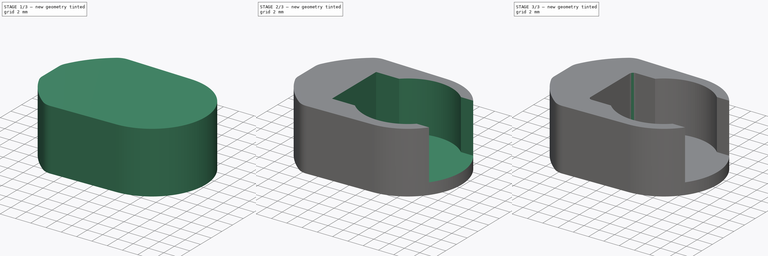
[diagram: build sequence overview — one tinted view per stage of 3, left to right]
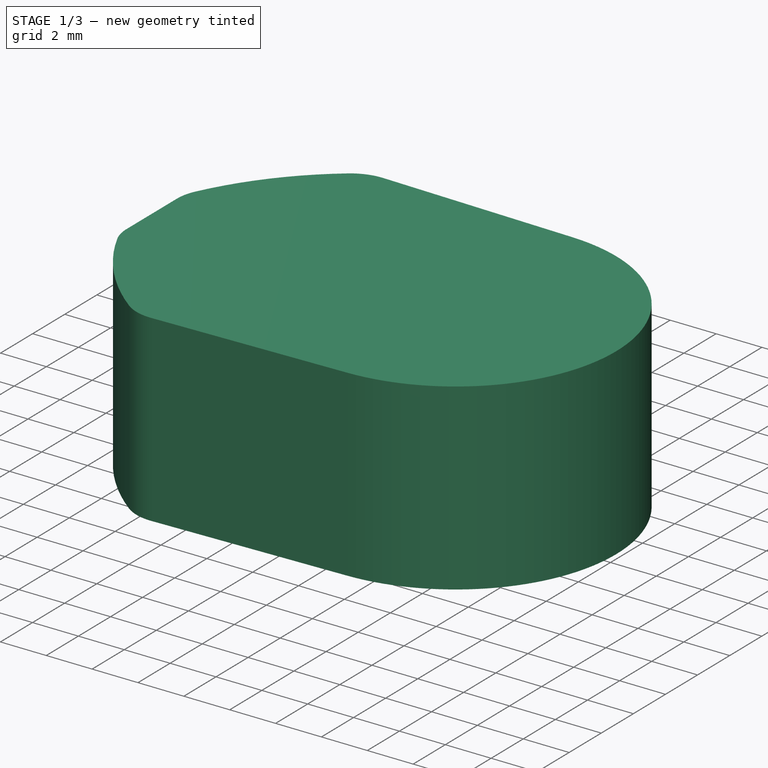
[diagram: stage 1 of 3 — iso view after this stage's code; geometry added in this stage tinted green]
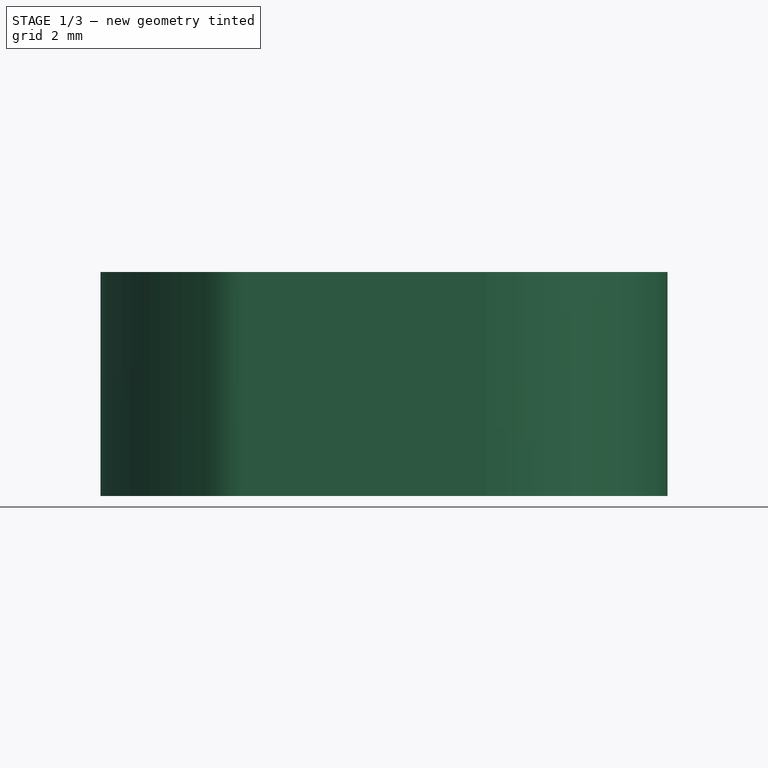
[diagram: stage 1 of 3 — front view after this stage's code; geometry added in this stage tinted green]
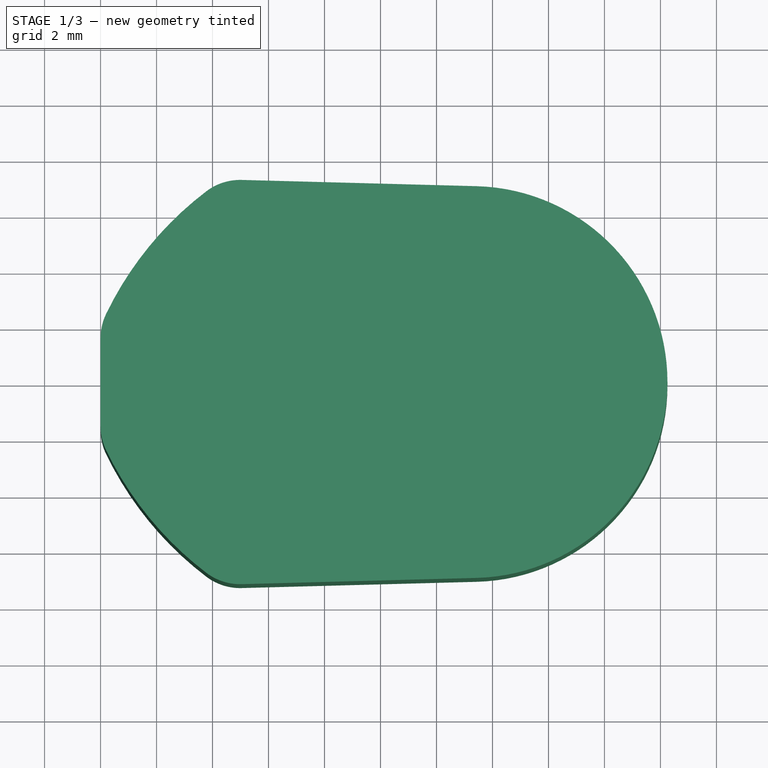
[diagram: stage 1 of 3 — top view after this stage's code; geometry added in this stage tinted green]
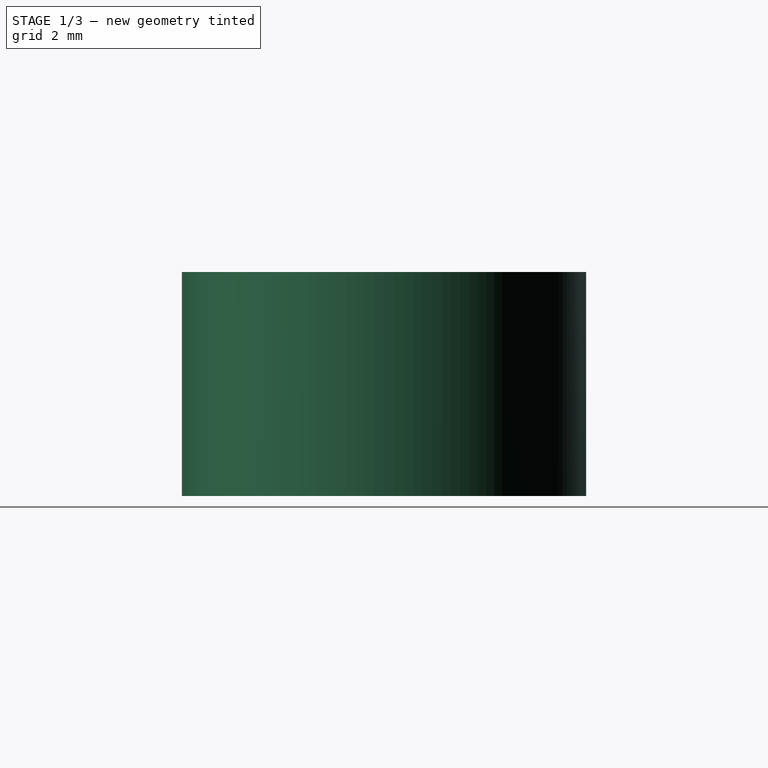
[diagram: stage 1 of 3 — right view after this stage's code; geometry added in this stage tinted green]
FCSTD DOCUMENT  (FreeCAD 1.1R20260414 (Git shallow))
Label: Pincher
Comment: Source: ServoQuetsch https://gitlab.com/mikeventor1/ServoQuetsch (CERN-OHL-P-2.0). Multi-file bundle: parts driven by VarSet in V.FCStd.
License: CERN Open Hardware Licence Version 2 - Permissive
LicenseURL: https://ohwr.org/cernohl
objects: Sketcher::SketchObject×3, PartDesign::Mirrored×2, PartDesign::Pocket×2, App::Point×1, PartDesign::Pad×1, PartDesign::Fillet×1, PartDesign::Body×1
note: 23 computed .brp shape members not serialized (recipe doc carries the construction recipe); baked Part::Feature solids carry a one-line shape summary decoded from their .brp
EXTERNAL_REF file=V.FCStd obj=VarSet

FEATURE [App::Point] Origin001  label="Ursprung"
  Role = Origin
FEATURE [Sketcher::SketchObject] Sketch004  label="Pincher"
  ArcFitTolerance = 1e-06
  AttachmentSupport = -> [Origin]
  ExternalTypes = [0,0]
  FullyConstrained = true
  MakeInternals = false
  MapMode = 5
  _ExternalGeoVersion = 1
  expr: .Constraints.PinchStartAngle = <<V>>#<<VarSet>>.PinchStartAngle
  expr: Constraints[3] = <<V>>#<<VarSet>>.PinchEndL
  expr: Constraints[4] = <<V>>#<<VarSet>>.PinchStartL
  expr: Constraints[6] = <<V>>#<<VarSet>>.PinchStartAngle / 2
  expr: Constraints[7] = (<<V>>#<<VarSet>>.PinchEndL + <<V>>#<<VarSet>>.PinchStartL) / 2
  sketch-geometry (16):
    g0: GeomPoint X=13.25 Y=-2 Z=0
    g1: LineSegment [constr] StartX=13.25 StartY=-2 StartZ=0 EndX=0 EndY=-2 EndZ=0
    g2: LineSegment [constr] StartX=13.25 StartY=-2 StartZ=0 EndX=4.37324 EndY=-7.125 EndZ=0
    g3: LineSegment [constr] StartX=13.25 StartY=-2 StartZ=0 EndX=1.90037 EndY=-5.04112 EndZ=0
    g4: ArcOfCircle CenterX=11.1148 CenterY=2.83301 CenterZ=0 NormalX=0 NormalY=0 NormalZ=1 AngleXU=0 Radius=12.1205 StartAngle=3.59119 EndAngle=4.06202
    g5: LineSegment StartX=0 StartY=0 StartZ=0 EndX=0 EndY=-1.5654 EndZ=0
    g6: ArcOfCircle CenterX=2 CenterY=-1.5654 CenterZ=0 NormalX=0 NormalY=0 NormalZ=1 AngleXU=0 Radius=2 StartAngle=3.14159 EndAngle=3.59119
    g7: LineSegment [constr] StartX=0 StartY=-1.5654 StartZ=0 EndX=0.198755 EndY=-2.4346 EndZ=0
    g8: LineSegment [constr] StartX=0 StartY=0 StartZ=0 EndX=13.25 EndY=0 EndZ=0
    g9: ArcOfCircle CenterX=13.25 CenterY=0 CenterZ=0 NormalX=0 NormalY=0 NormalZ=1 AngleXU=0 Radius=7 StartAngle=4.73897 EndAngle=6.28319
    g10: LineSegment StartX=0 StartY=0 StartZ=0 EndX=20.25 EndY=0 EndZ=0
    g11: LineSegment StartX=5.04013 StartY=-7.22079 StartZ=0 EndX=13.4361 EndY=-6.99753 EndZ=0
    g12: ArcOfCircle CenterX=4.98696 CenterY=-5.22149 CenterZ=0 NormalX=0 NormalY=0 NormalZ=1 AngleXU=0 Radius=2 StartAngle=4.06202 EndAngle=4.73897
    g13: LineSegment [constr] StartX=2 StartY=-1.5654 StartZ=0 EndX=0.0993777 EndY=-2 EndZ=0
    g14: LineSegment [constr] StartX=3.776 StartY=-6.81321 StartZ=0 EndX=4.37324 EndY=-7.125 EndZ=0
    g15: LineSegment [constr] StartX=4.37324 StartY=-7.125 StartZ=0 EndX=5.04013 EndY=-7.22079 EndZ=0
  constraints (40):
    c: Coincident(g1,g0)
    c: Coincident(g2,g0)
    c: Angle(g1,g2) = 0.523599  'PinchStartAngle'
    c: DistanceX(g1,g1) = 13.25
    c: Distance(g2,g2) = 10.25
    c: Coincident(g3,g0)
    c: Angle(g1,g3) = 0.261799
    c: Distance(g3,g3) = 11.75
    c: PointOnObject(g3,g4)
    c: Coincident(g5,g-1)
    c: PointOnObject(g1,g-2)
    c: DistanceY(g1,g5) = 2
    c: Tangent(g5,g6) = -1.5708
    c: Tangent(g4,g6) = -1.5708
    c: Radius(g6) = 2
    c: Vertical(g5)
    c: Coincident(g7,g5)
    c: Coincident(g7,g4)
    c: Coincident(g8,g5)
    c: PointOnObject(g8,g-1)
    c: Equal(g8,g1)
    c: Coincident(g9,g8)
    c: PointOnObject(g9,g-1)
    c: Coincident(g10,g5)
    c: Coincident(g10,g9)
    c: Radius(g9) = 7
    c: Tangent(g11,g9) = -1.5708
    c: Tangent(g11,g12) = -1.5708
    c: Tangent(g4,g12) = -1.5708
    c: Radius(g12) = 2
    c: Coincident(g13,g6)
    c: Symmetric(g7,g7,g13)
    c: PointOnObject(g13,g1)
    c: PointOnObject(g2,g12)
    c: Horizontal(g1)
    c: Coincident(g14,g4)
    c: Coincident(g14,g2)
    c: Coincident(g15,g2)
    c: Coincident(g15,g11)
    c: Equal(g15,g14)
FEATURE [PartDesign::Pad] Pad
  Direction = (0,0,1)
  Length = 8
  Length2 = 10
  Profile = -> Sketch004
  ReferenceAxis = -> Sketch004 [N_Axis]
  SideType = 0
  Suppressed = false
  Type = 0
  Type2 = 0
  expr: Length = <<V>>#<<VarSet>>.PincherH
FEATURE [PartDesign::Mirrored] Mirrored
  BaseFeature = -> Pad
  MirrorPlane = -> Sketch004 [H_Axis]
  Originals = -> [Pad]
  Suppressed = false
  TransformMode = 0
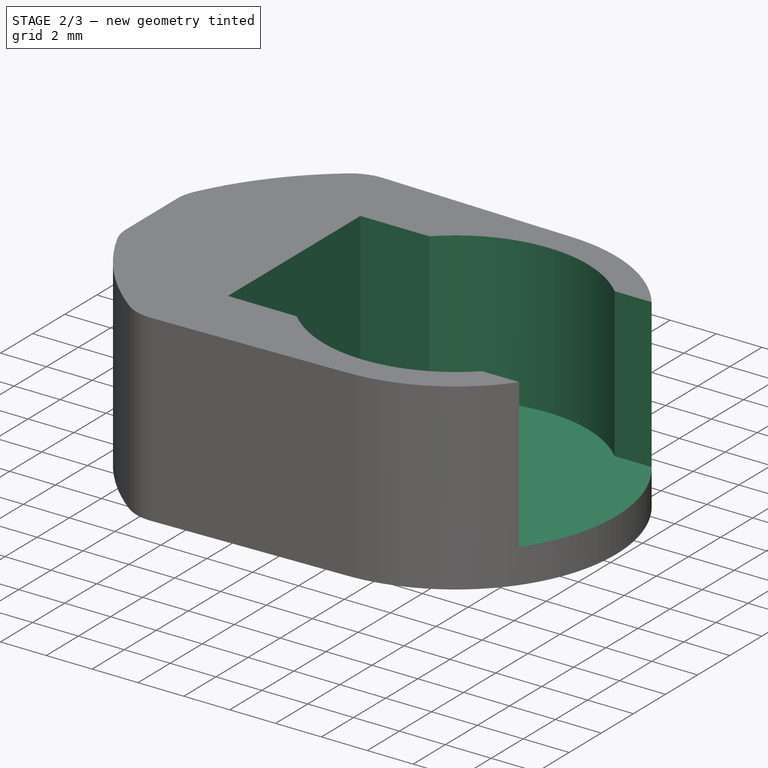
[diagram: stage 2 of 3 — iso view after this stage's code; geometry added in this stage tinted green]
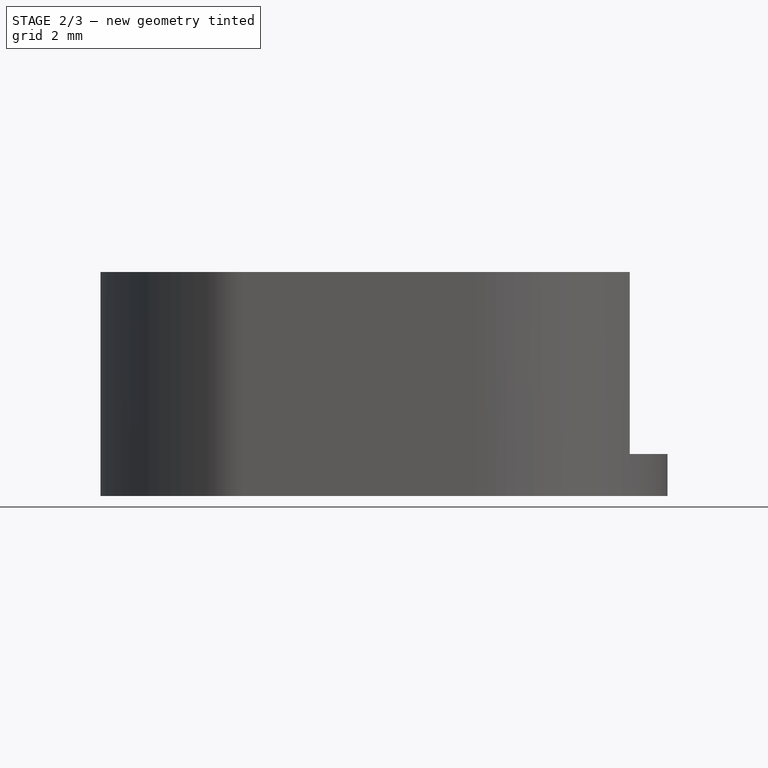
[diagram: stage 2 of 3 — front view after this stage's code; geometry added in this stage tinted green]
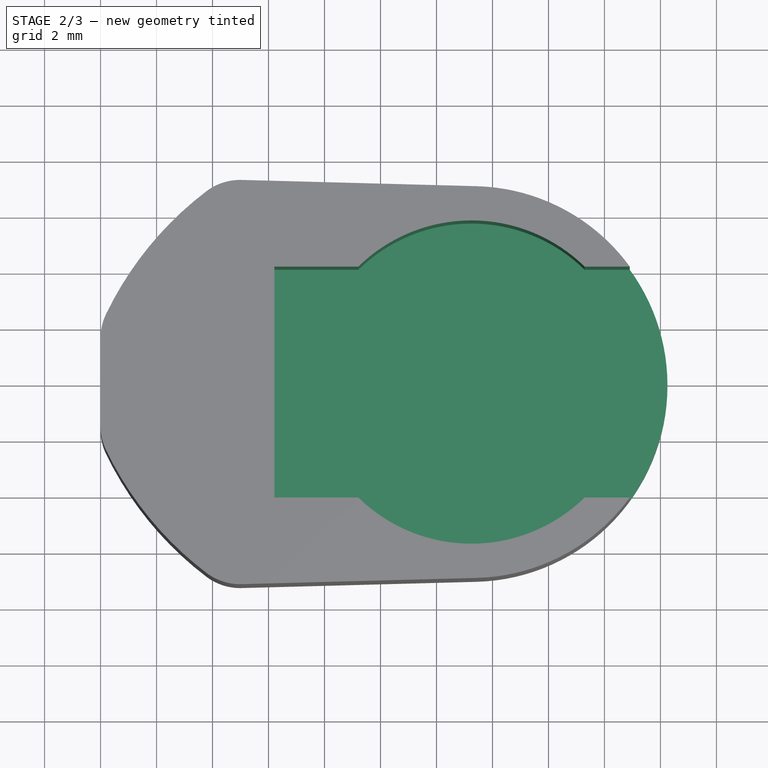
[diagram: stage 2 of 3 — top view after this stage's code; geometry added in this stage tinted green]
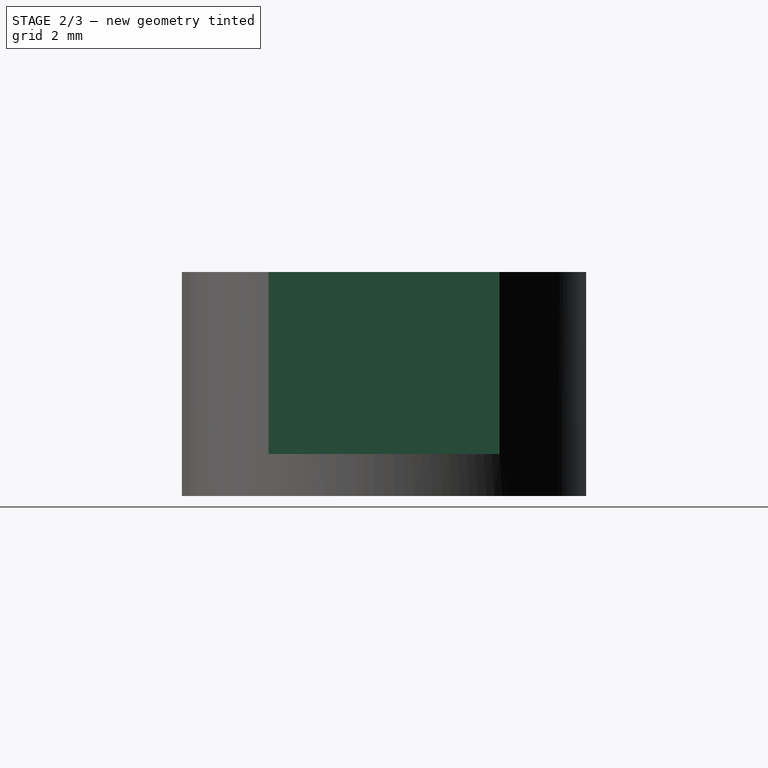
[diagram: stage 2 of 3 — right view after this stage's code; geometry added in this stage tinted green]
FEATURE [Sketcher::SketchObject] Sketch
  ArcFitTolerance = 1e-06
  AttachmentSupport = -> [Origin]
  ExternalGeometry = -> [Mirrored]
  ExternalTypes = [0]
  FullyConstrained = true
  MakeInternals = false
  MapMode = 5
  _ExternalGeoVersion = 1
  sketch-geometry (1):
    g0: Circle CenterX=13.25 CenterY=0 CenterZ=0 NormalX=0 NormalY=0 NormalZ=1 AngleXU=0 Radius=1.5
  constraints (2):
    c: Coincident(g0,g-3)
    c: Diameter(g0) = 3
FEATURE [Sketcher::SketchObject] Sketch005  label="ServoConnect"
  ArcFitTolerance = 1e-06
  AttachmentSupport = -> [Mirrored]
  ExternalGeometry = -> [Mirrored]
  ExternalTypes = [0]
  FullyConstrained = true
  MakeInternals = false
  MapMode = 5
  Placement = pos=(0,0,8) rot=(0,0,1;0rad)
  _ExternalGeoVersion = 1
  expr: Constraints[10] = 4 + <<V>>#<<VarSet>>.ServoConnectOffset
  expr: Constraints[15] = 5.65 + <<V>>#<<VarSet>>.ServoConnectOffset
  sketch-geometry (6):
    g0: LineSegment StartX=17.2917 StartY=-4.125 StartZ=0 EndX=20.2917 EndY=-4.125 EndZ=0
    g1: LineSegment StartX=20.2917 StartY=-4.125 StartZ=0 EndX=20.2917 EndY=0 EndZ=0
    g2: LineSegment StartX=9.20834 StartY=-4.125 StartZ=0 EndX=6.20834 EndY=-4.125 EndZ=0
    g3: LineSegment StartX=6.20834 StartY=-4.125 StartZ=0 EndX=6.20834 EndY=0 EndZ=0
    g4: LineSegment StartX=20.2917 StartY=0 StartZ=0 EndX=6.20834 EndY=0 EndZ=0
    g5: ArcOfCircle CenterX=13.25 CenterY=0 CenterZ=0 NormalX=0 NormalY=0 NormalZ=1 AngleXU=0 Radius=5.775 StartAngle=3.9372 EndAngle=5.48758
  constraints (17):
    c: Coincident(g1,g0)
    c: Coincident(g3,g2)
    c: Equal(g2,g0)
    c: Coincident(g4,g1)
    c: Coincident(g4,g3)
    c: Perpendicular(g2,g3)
    c: Perpendicular(g1,g0)
    c: Perpendicular(g4,g1)
    c: Perpendicular(g3,g4)
    c: Distance(g0,g0) = 3
    c: Distance(g1,g1) = 4.125
    c: Horizontal(g4)
    c: Symmetric(g4,g4,g5)
    c: Coincident(g5,g2)
    c: Coincident(g5,g0)
    c: Radius(g5) = 5.775
    c: Coincident(g5,g-3)
FEATURE [PartDesign::Pocket] Pocket
  BaseFeature = -> Mirrored
  Direction = (0,0,-1)
  Length = 6.5
  Length2 = 5
  Profile = -> Sketch005
  ReferenceAxis = -> Sketch005 [N_Axis]
  SideType = 0
  Suppressed = false
  Type = 0
  Type2 = 0
  expr: Length = <<V>>#<<VarSet>>.PincherH - <<V>>#<<VarSet>>.PinchBottomT
FEATURE [PartDesign::Mirrored] Mirrored001
  BaseFeature = -> Pocket
  MirrorPlane = -> Sketch005 [H_Axis]
  Originals = -> [Pocket]
  Suppressed = false
  TransformMode = 0
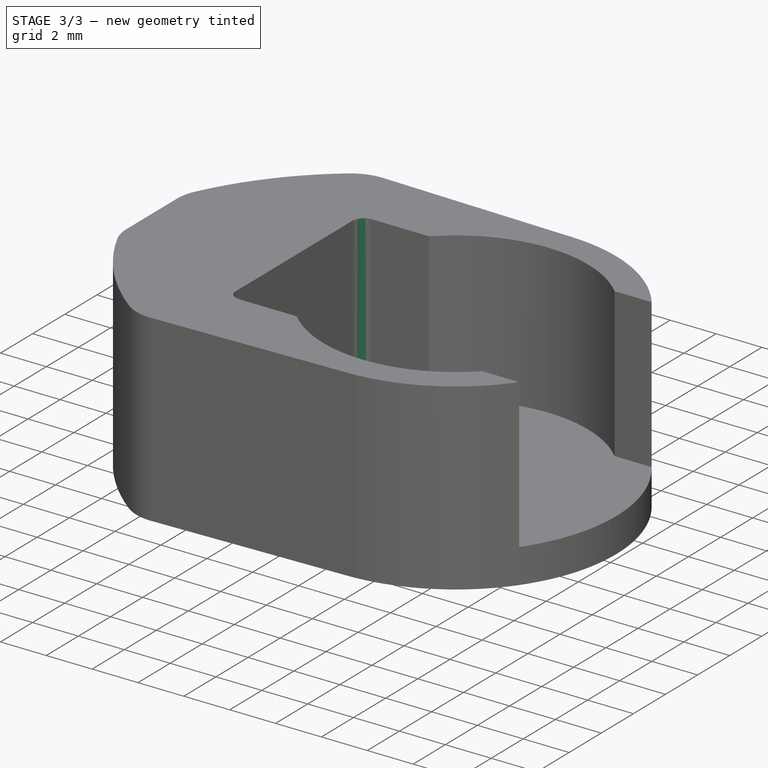
[diagram: stage 3 of 3 — iso view after this stage's code; geometry added in this stage tinted green]
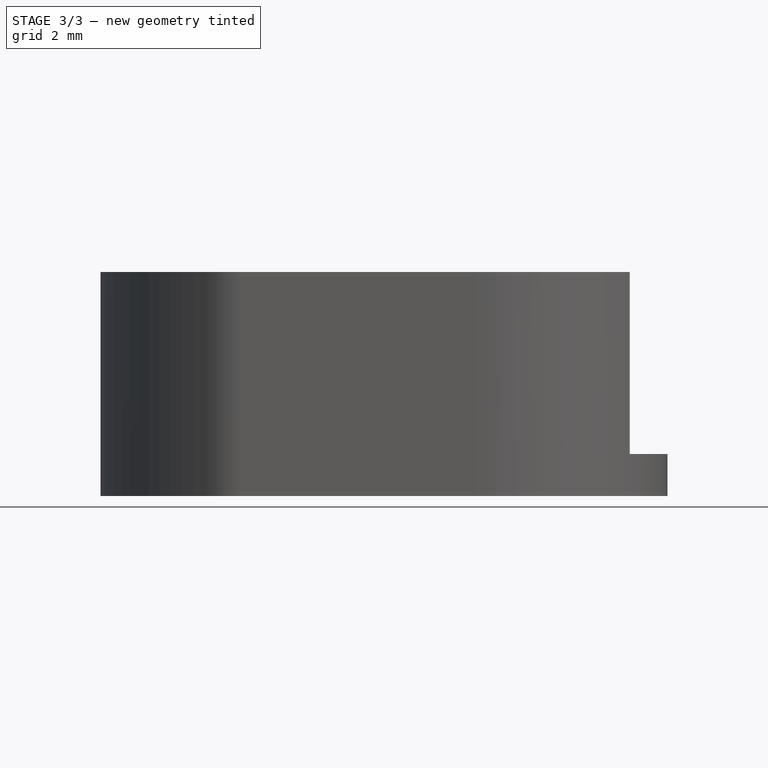
[diagram: stage 3 of 3 — front view after this stage's code; geometry added in this stage tinted green]
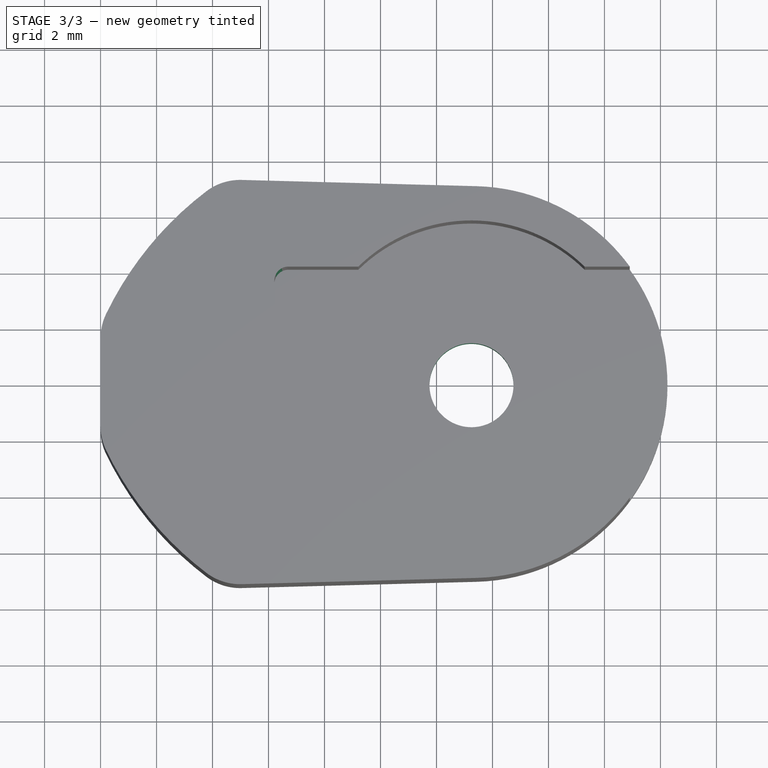
[diagram: stage 3 of 3 — top view after this stage's code; geometry added in this stage tinted green]
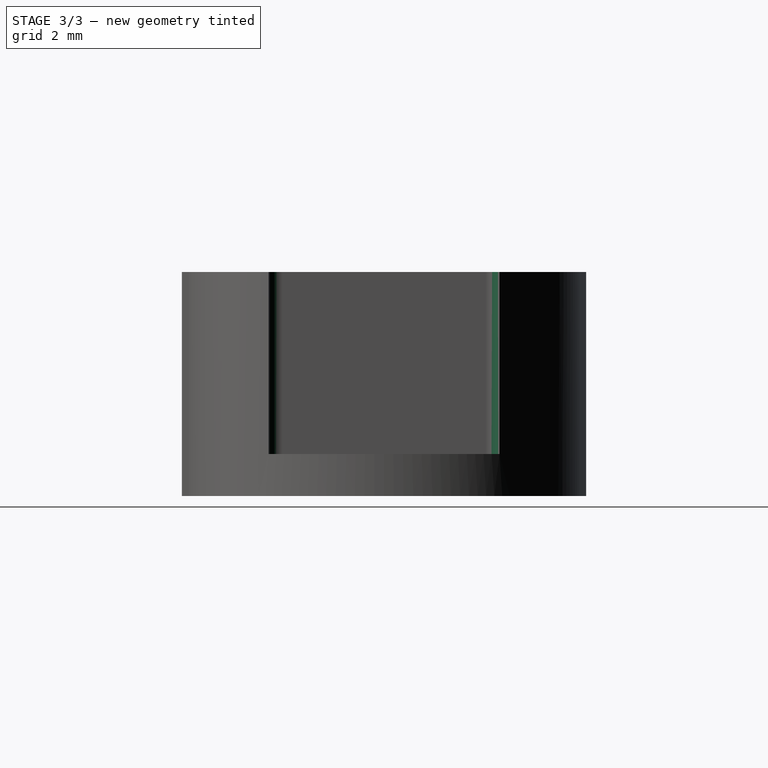
[diagram: stage 3 of 3 — right view after this stage's code; geometry added in this stage tinted green]
FEATURE [PartDesign::Pocket] Pocket001
  BaseFeature = -> Mirrored001
  Direction = (0,0,-1)
  Length = 5
  Length2 = 5
  Profile = -> Sketch
  ReferenceAxis = -> Sketch [N_Axis]
  Reversed = true
  SideType = 0
  Suppressed = false
  Type = 1
  Type2 = 0
FEATURE [PartDesign::Fillet] Fillet
  Base = -> Pocket001 [Edge65,Edge52]
  BaseFeature = -> Pocket001
  Radius = 0.5
  SupportTransform = false
  Suppressed = false
  UseAllEdges = false
FEATURE [PartDesign::Body] Body  label="Pincher001"
  AllowCompound = false
  Group = -> [Sketch004,Pad,Mirrored,Sketch,Sketch005,Pocket,Mirrored001,Pocket001,Fillet]
  Origin = -> Origin
  Tip = -> Fillet
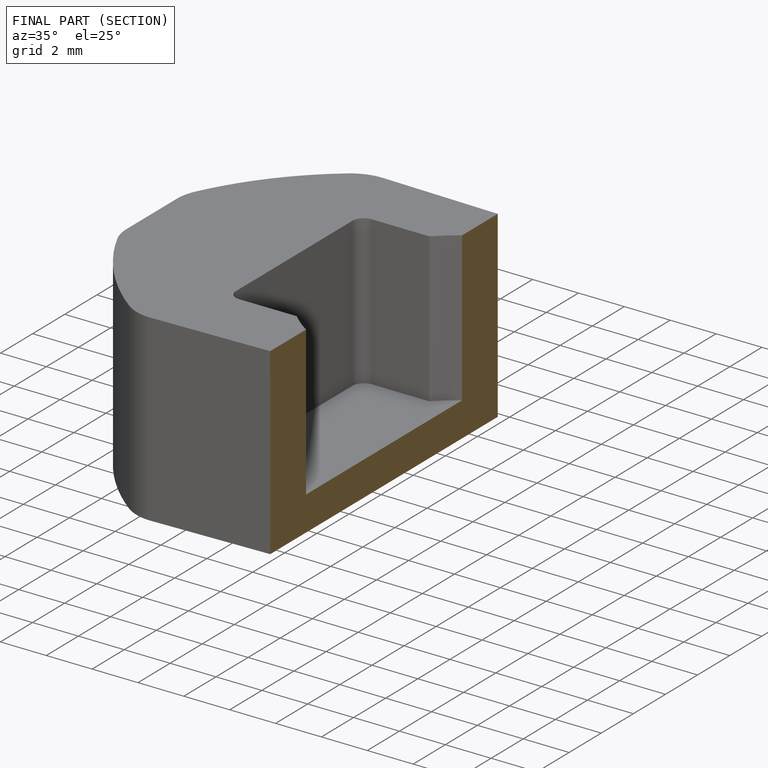
[diagram: finished part — half-section view (interior)]
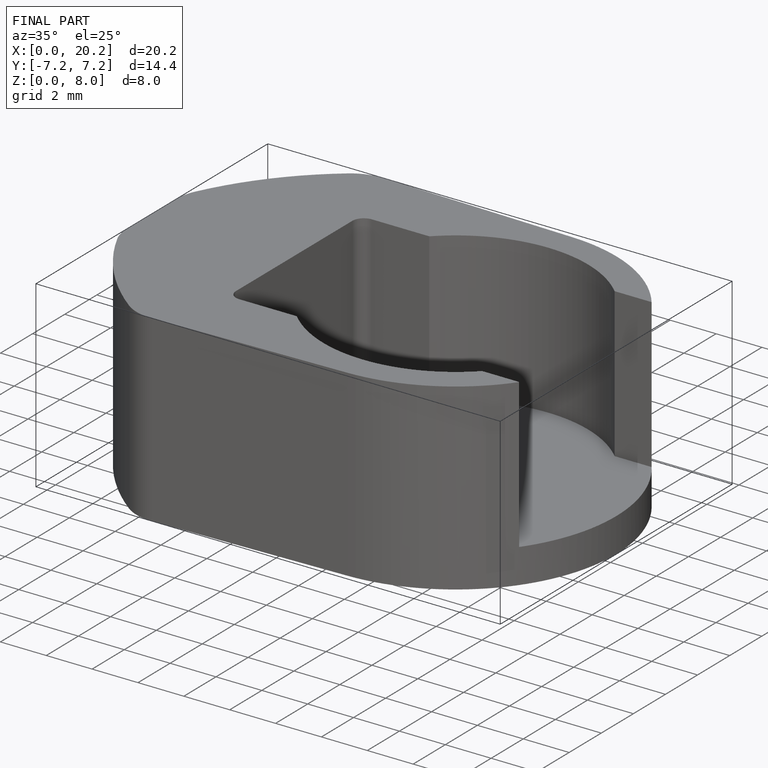
[diagram: finished part — iso view with bounding-box wireframe]
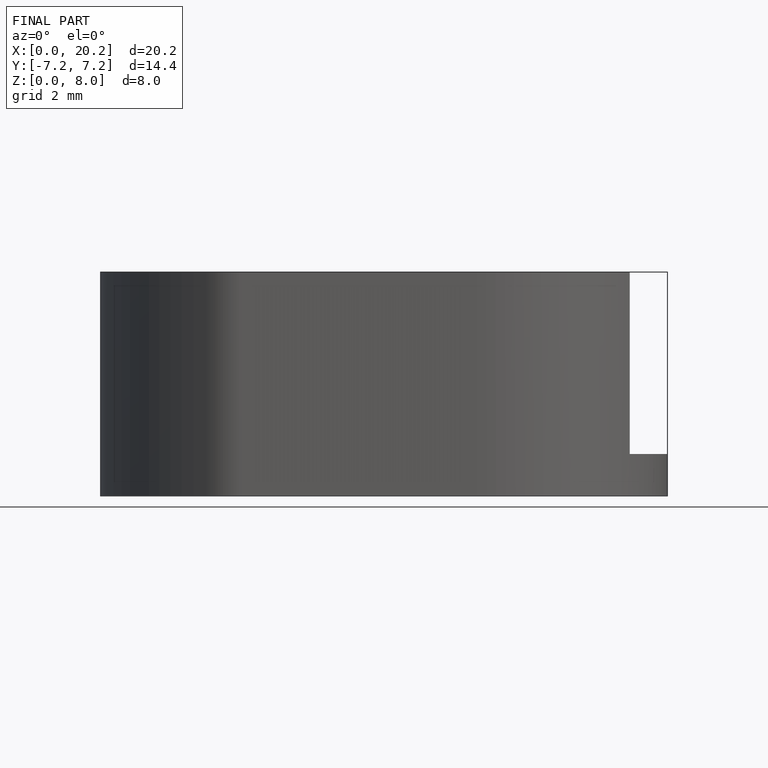
[diagram: finished part — front view with bounding-box wireframe]
